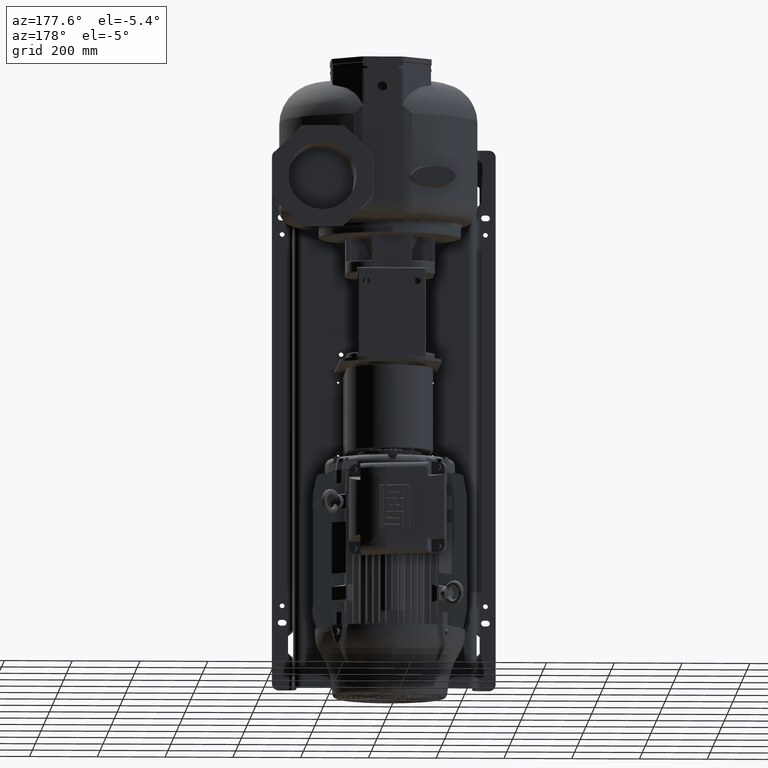
[diagram: clean part render]
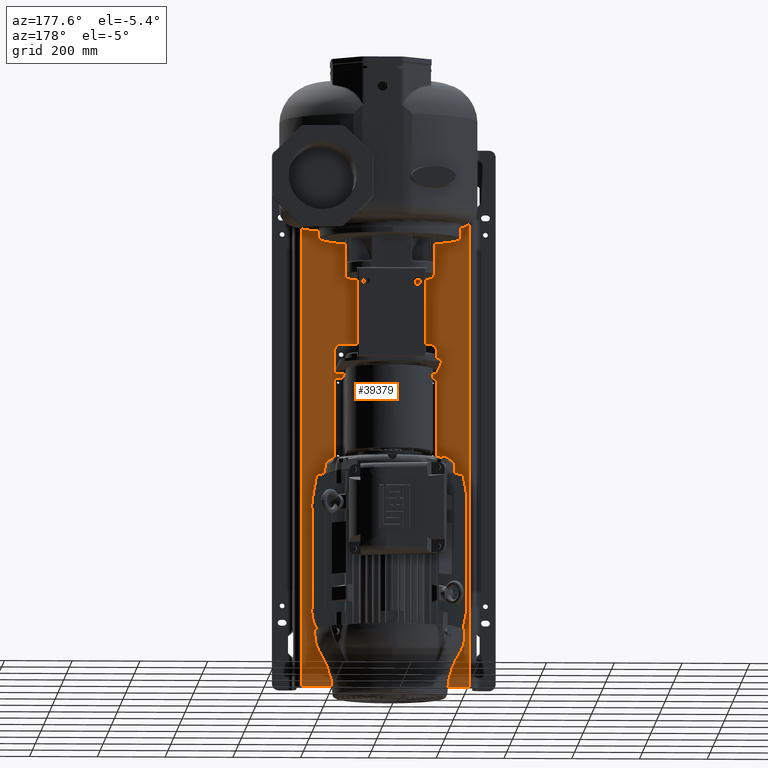
[diagram: same view with one face highlighted and labeled with its STEP entity id]
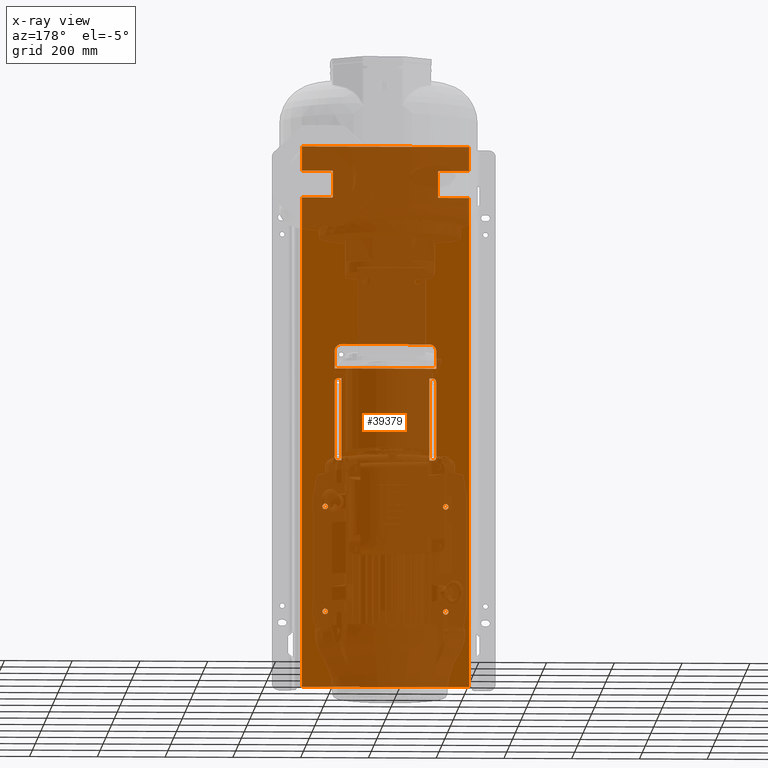
[diagram: x-ray of the same camera — body ghosted, the highlighted face saturated]
A machine part, auxiliary view. The second image highlights one B-rep face of the part: STEP entity #39379.
The next image is the same camera in x-ray: the body ghosted, the highlighted face saturated — about 74% of this face is hidden behind the body in this view.
In plain terms, the highlighted planar face has unit normal (0, 1, 0).
Its self-contained STEP definition (entity closure, byte-faithful):
#3319=DIRECTION('',(0.E0,0.E0,1.E0));
#3320=VECTOR('',#3319,2.43E2);
#3321=CARTESIAN_POINT('',(-1.296E2,0.E0,-8.28E2));
#3322=LINE('',#3321,#3320);
#3328=DIRECTION('',(0.E0,0.E0,1.E0));
#3329=VECTOR('',#3328,7.168629150102E1);
#3330=CARTESIAN_POINT('',(2.47E2,0.E0,2.931370849898E1));
#3331=LINE('',#3330,#3329);
#3332=DIRECTION('',(0.E0,0.E0,1.E0));
#3333=VECTOR('',#3332,1.449E3);
#3334=CARTESIAN_POINT('',(2.47E2,0.E0,-1.499E3));
#3335=LINE('',#3334,#3333);
#3336=CARTESIAN_POINT('',(1.78E2,0.E0,-9.65E2));
#3337=DIRECTION('',(0.E0,1.E0,0.E0));
#3338=DIRECTION('',(-1.E0,0.E0,0.E0));
#3339=AXIS2_PLACEMENT_3D('',#3336,#3337,#3338);
#3341=CARTESIAN_POINT('',(1.78E2,0.E0,-9.65E2));
#3342=DIRECTION('',(0.E0,1.E0,0.E0));
#3343=DIRECTION('',(1.E0,0.E0,0.E0));
#3344=AXIS2_PLACEMENT_3D('',#3341,#3342,#3343);
#3346=CARTESIAN_POINT('',(-1.78E2,0.E0,-9.65E2));
#3347=DIRECTION('',(0.E0,1.E0,0.E0));
#3348=DIRECTION('',(-1.E0,0.E0,0.E0));
#3349=AXIS2_PLACEMENT_3D('',#3346,#3347,#3348);
#3351=CARTESIAN_POINT('',(-1.78E2,0.E0,-9.65E2));
#3352=DIRECTION('',(0.E0,1.E0,0.E0));
#3353=DIRECTION('',(1.E0,0.E0,0.E0));
#3354=AXIS2_PLACEMENT_3D('',#3351,#3352,#3353);
#3356=CARTESIAN_POINT('',(1.78E2,0.E0,-1.276E3));
#3357=DIRECTION('',(0.E0,1.E0,0.E0));
#3358=DIRECTION('',(-1.E0,0.E0,0.E0));
#3359=AXIS2_PLACEMENT_3D('',#3356,#3357,#3358);
#3361=CARTESIAN_POINT('',(1.78E2,0.E0,-1.276E3));
#3362=DIRECTION('',(0.E0,1.E0,0.E0));
#3363=DIRECTION('',(1.E0,0.E0,0.E0));
#3364=AXIS2_PLACEMENT_3D('',#3361,#3362,#3363);
#3366=CARTESIAN_POINT('',(-1.78E2,0.E0,-1.276E3));
#3367=DIRECTION('',(0.E0,1.E0,0.E0));
#3368=DIRECTION('',(-1.E0,0.E0,0.E0));
#3369=AXIS2_PLACEMENT_3D('',#3366,#3367,#3368);
#3371=CARTESIAN_POINT('',(-1.78E2,0.E0,-1.276E3));
#3372=DIRECTION('',(0.E0,1.E0,0.E0));
#3373=DIRECTION('',(1.E0,0.E0,0.E0));
#3374=AXIS2_PLACEMENT_3D('',#3371,#3372,#3373);
#3376=DIRECTION('',(-1.E0,0.E0,0.E0));
#3377=VECTOR('',#3376,8.4E1);
#3378=CARTESIAN_POINT('',(2.43E2,0.E0,3.E1));
#3379=LINE('',#3378,#3377);
#3415=CARTESIAN_POINT('',(1.59E2,0.E0,2.6E1));
#3416=DIRECTION('',(0.E0,-1.E0,0.E0));
#3417=DIRECTION('',(0.E0,0.E0,1.E0));
#3418=AXIS2_PLACEMENT_3D('',#3415,#3416,#3417);
#3425=DIRECTION('',(0.E0,0.E0,-1.E0));
#3426=VECTOR('',#3425,7.2E1);
#3427=CARTESIAN_POINT('',(1.55E2,0.E0,2.6E1));
#3428=LINE('',#3427,#3426);
#3446=CARTESIAN_POINT('',(1.59E2,-6.821210263297E-13,-4.6E1));
#3447=DIRECTION('',(0.E0,1.E0,0.E0));
#3448=DIRECTION('',(0.E0,0.E0,-1.E0));
#3449=AXIS2_PLACEMENT_3D('',#3446,#3447,#3448);
#3451=DIRECTION('',(-1.E0,0.E0,0.E0));
#3452=VECTOR('',#3451,8.8E1);
#3453=CARTESIAN_POINT('',(2.47E2,0.E0,-5.E1));
#3454=LINE('',#3453,#3452);
#3491=DIRECTION('',(-1.E0,0.E0,0.E0));
#3492=VECTOR('',#3491,8.8E1);
#3493=CARTESIAN_POINT('',(-1.59E2,0.E0,-5.E1));
#3494=LINE('',#3493,#3492);
#3557=DIRECTION('',(-1.E0,0.E0,0.E0));
#3558=VECTOR('',#3557,4.94E2);
#3559=CARTESIAN_POINT('',(2.47E2,0.E0,-1.499E3));
#3560=LINE('',#3559,#3558);
#3583=DIRECTION('',(0.E0,0.E0,1.E0));
#3584=VECTOR('',#3583,7.168629150102E1);
#3585=CARTESIAN_POINT('',(-2.47E2,0.E0,2.931370849898E1));
#3586=LINE('',#3585,#3584);
#3587=DIRECTION('',(0.E0,0.E0,1.E0));
#3588=VECTOR('',#3587,1.449E3);
#3589=CARTESIAN_POINT('',(-2.47E2,0.E0,-1.499E3));
#3590=LINE('',#3589,#3588);
#4370=CARTESIAN_POINT('',(2.43E2,0.E0,1.8E1));
#4371=DIRECTION('',(0.E0,-1.E0,0.E0));
#4372=DIRECTION('',(3.333333333333E-1,0.E0,9.428090415821E-1));
#4373=AXIS2_PLACEMENT_3D('',#4370,#4371,#4372);
#4989=CARTESIAN_POINT('',(-1.59E2,0.E0,-4.6E1));
#4990=DIRECTION('',(0.E0,-1.E0,0.E0));
#4991=DIRECTION('',(0.E0,0.E0,-1.E0));
#4992=AXIS2_PLACEMENT_3D('',#4989,#4990,#4991);
#4999=DIRECTION('',(0.E0,0.E0,1.E0));
#5000=VECTOR('',#4999,7.2E1);
#5001=CARTESIAN_POINT('',(-1.55E2,0.E0,-4.6E1));
#5002=LINE('',#5001,#5000);
#5053=CARTESIAN_POINT('',(-1.59E2,-2.273736754432E-13,2.6E1));
#5054=DIRECTION('',(0.E0,1.E0,0.E0));
#5055=DIRECTION('',(0.E0,0.E0,1.E0));
#5056=AXIS2_PLACEMENT_3D('',#5053,#5054,#5055);
#5058=DIRECTION('',(-1.E0,0.E0,0.E0));
#5059=VECTOR('',#5058,8.4E1);
#5060=CARTESIAN_POINT('',(-1.59E2,0.E0,3.E1));
#5061=LINE('',#5060,#5059);
#5096=CARTESIAN_POINT('',(-2.43E2,0.E0,1.8E1));
#5097=DIRECTION('',(0.E0,-1.E0,0.E0));
#5098=DIRECTION('',(0.E0,0.E0,1.E0));
#5099=AXIS2_PLACEMENT_3D('',#5096,#5097,#5098);
#7192=DIRECTION('',(-1.E0,0.E0,0.E0));
#7193=VECTOR('',#7192,4.94E2);
#7194=CARTESIAN_POINT('',(2.47E2,0.E0,1.01E2));
#7195=LINE('',#7194,#7193);
#8620=CARTESIAN_POINT('',(-1.4E2,-4.547473508865E-13,-5.95E2));
#8621=DIRECTION('',(0.E0,-1.E0,0.E0));
#8622=DIRECTION('',(0.E0,0.E0,1.E0));
#8623=AXIS2_PLACEMENT_3D('',#8620,#8621,#8622);
#8625=DIRECTION('',(0.E0,0.E0,1.E0));
#8626=VECTOR('',#8625,2.23E2);
#8627=CARTESIAN_POINT('',(-1.5E2,0.E0,-8.18E2));
#8628=LINE('',#8627,#8626);
#8637=CARTESIAN_POINT('',(-1.4E2,-4.547473508865E-13,-8.18E2));
#8638=DIRECTION('',(0.E0,-1.E0,0.E0));
#8639=DIRECTION('',(-1.E0,0.E0,0.E0));
#8640=AXIS2_PLACEMENT_3D('',#8637,#8638,#8639);
#8642=DIRECTION('',(1.E0,0.E0,0.E0));
#8643=VECTOR('',#8642,1.04E1);
#8644=CARTESIAN_POINT('',(-1.4E2,0.E0,-8.28E2));
#8645=LINE('',#8644,#8643);
#8667=DIRECTION('',(1.E0,0.E0,0.E0));
#8668=VECTOR('',#8667,1.04E1);
#8669=CARTESIAN_POINT('',(-1.4E2,0.E0,-5.85E2));
#8670=LINE('',#8669,#8668);
#8837=CARTESIAN_POINT('',(1.4E2,1.250555214938E-12,-5.95E2));
#8838=DIRECTION('',(0.E0,-1.E0,0.E0));
#8839=DIRECTION('',(1.E0,0.E0,1.443822839065E-12));
#8840=AXIS2_PLACEMENT_3D('',#8837,#8838,#8839);
#8842=DIRECTION('',(1.E0,1.186017096499E-14,0.E0));
#8843=VECTOR('',#8842,1.04E1);
#8844=CARTESIAN_POINT('',(1.296E2,-1.233457780359E-13,-5.85E2));
#8845=LINE('',#8844,#8843);
#8872=DIRECTION('',(0.E0,0.E0,1.E0));
#8873=VECTOR('',#8872,2.43E2);
#8874=CARTESIAN_POINT('',(1.296E2,-1.197930643571E-13,-8.28E2));
#8875=LINE('',#8874,#8873);
#8889=DIRECTION('',(1.E0,1.151856388049E-14,0.E0));
#8890=VECTOR('',#8889,1.04E1);
#8891=CARTESIAN_POINT('',(1.296E2,-1.197930643571E-13,-8.28E2));
#8892=LINE('',#8891,#8890);
#8897=CARTESIAN_POINT('',(1.4E2,-3.410605131648E-13,-8.18E2));
#8898=DIRECTION('',(0.E0,-1.E0,0.E0));
#8899=DIRECTION('',(0.E0,0.E0,-1.E0));
#8900=AXIS2_PLACEMENT_3D('',#8897,#8898,#8899);
#8902=DIRECTION('',(0.E0,0.E0,1.E0));
#8903=VECTOR('',#8902,2.23E2);
#8904=CARTESIAN_POINT('',(1.5E2,-3.789561257387E-14,-8.18E2));
#8905=LINE('',#8904,#8903);
#11347=CARTESIAN_POINT('',(-1.3E2,0.E0,-5.04E2));
#11348=DIRECTION('',(0.E0,-1.E0,0.E0));
#11349=DIRECTION('',(0.E0,0.E0,1.E0));
#11350=AXIS2_PLACEMENT_3D('',#11347,#11348,#11349);
#11352=DIRECTION('',(0.E0,0.E0,1.E0));
#11353=VECTOR('',#11352,5.2E1);
#11354=CARTESIAN_POINT('',(-1.5E2,2.819966482548E-14,-5.56E2));
#11355=LINE('',#11354,#11353);
#11368=DIRECTION('',(1.E0,0.E0,0.E0));
#11369=VECTOR('',#11368,3.E2);
#11370=CARTESIAN_POINT('',(-1.5E2,2.819966482548E-14,-5.56E2));
#11371=LINE('',#11370,#11369);
#11390=DIRECTION('',(0.E0,0.E0,-1.E0));
#11391=VECTOR('',#11390,5.2E1);
#11392=CARTESIAN_POINT('',(1.5E2,0.E0,-5.04E2));
#11393=LINE('',#11392,#11391);
#11398=CARTESIAN_POINT('',(1.3E2,0.E0,-5.04E2));
#11399=DIRECTION('',(0.E0,-1.E0,0.E0));
#11400=DIRECTION('',(1.E0,0.E0,0.E0));
#11401=AXIS2_PLACEMENT_3D('',#11398,#11399,#11400);
#11403=DIRECTION('',(1.E0,0.E0,0.E0));
#11404=VECTOR('',#11403,2.6E2);
#11405=CARTESIAN_POINT('',(-1.3E2,0.E0,-4.84E2));
#11406=LINE('',#11405,#11404);
#34976=CARTESIAN_POINT('',(2.47E2,0.E0,-1.499E3));
#34977=VERTEX_POINT('',#34976);
#34978=CARTESIAN_POINT('',(-2.47E2,0.E0,-1.499E3));
#34979=VERTEX_POINT('',#34978);
#34992=CARTESIAN_POINT('',(2.47E2,0.E0,1.01E2));
#34993=VERTEX_POINT('',#34992);
#34994=CARTESIAN_POINT('',(-2.47E2,0.E0,1.01E2));
#34995=VERTEX_POINT('',#34994);
#35274=CARTESIAN_POINT('',(1.6985E2,0.E0,-9.65E2));
#35275=CARTESIAN_POINT('',(1.8615E2,0.E0,-9.65E2));
#35276=VERTEX_POINT('',#35274);
#35277=VERTEX_POINT('',#35275);
#35278=CARTESIAN_POINT('',(-1.8615E2,0.E0,-9.65E2));
#35279=CARTESIAN_POINT('',(-1.6985E2,0.E0,-9.65E2));
#35280=VERTEX_POINT('',#35278);
#35281=VERTEX_POINT('',#35279);
#35282=CARTESIAN_POINT('',(1.6985E2,0.E0,-1.276E3));
#35283=CARTESIAN_POINT('',(1.8615E2,0.E0,-1.276E3));
#35284=VERTEX_POINT('',#35282);
#35285=VERTEX_POINT('',#35283);
#35286=CARTESIAN_POINT('',(-1.8615E2,0.E0,-1.276E3));
#35287=CARTESIAN_POINT('',(-1.6985E2,0.E0,-1.276E3));
#35288=VERTEX_POINT('',#35286);
#35289=VERTEX_POINT('',#35287);
#35338=CARTESIAN_POINT('',(2.47E2,0.E0,-5.E1));
#35339=CARTESIAN_POINT('',(2.47E2,0.E0,2.931370849898E1));
#35340=VERTEX_POINT('',#35338);
#35341=VERTEX_POINT('',#35339);
#35342=CARTESIAN_POINT('',(-2.47E2,0.E0,-5.E1));
#35343=CARTESIAN_POINT('',(-2.47E2,0.E0,2.931370849898E1));
#35344=VERTEX_POINT('',#35342);
#35345=VERTEX_POINT('',#35343);
#35362=CARTESIAN_POINT('',(2.43E2,0.E0,3.E1));
#35363=CARTESIAN_POINT('',(1.59E2,0.E0,3.E1));
#35364=VERTEX_POINT('',#35362);
#35365=VERTEX_POINT('',#35363);
#35366=CARTESIAN_POINT('',(-1.59E2,0.E0,3.E1));
#35367=CARTESIAN_POINT('',(-2.43E2,0.E0,3.E1));
#35368=VERTEX_POINT('',#35366);
#35369=VERTEX_POINT('',#35367);
#35370=CARTESIAN_POINT('',(1.59E2,0.E0,-5.E1));
#35371=VERTEX_POINT('',#35370);
#35372=CARTESIAN_POINT('',(-1.59E2,0.E0,-5.E1));
#35373=VERTEX_POINT('',#35372);
#35374=CARTESIAN_POINT('',(1.55E2,0.E0,2.6E1));
#35375=CARTESIAN_POINT('',(1.55E2,0.E0,-4.6E1));
#35376=VERTEX_POINT('',#35374);
#35377=VERTEX_POINT('',#35375);
#35378=CARTESIAN_POINT('',(-1.55E2,0.E0,-4.6E1));
#35379=CARTESIAN_POINT('',(-1.55E2,0.E0,2.6E1));
#35380=VERTEX_POINT('',#35378);
#35381=VERTEX_POINT('',#35379);
#35422=CARTESIAN_POINT('',(-1.5E2,2.819966482548E-14,-5.56E2));
#35423=CARTESIAN_POINT('',(1.5E2,2.819966482548E-14,-5.56E2));
#35424=VERTEX_POINT('',#35422);
#35425=VERTEX_POINT('',#35423);
#35426=CARTESIAN_POINT('',(-1.5E2,0.E0,-5.04E2));
#35427=VERTEX_POINT('',#35426);
#35428=CARTESIAN_POINT('',(-1.3E2,0.E0,-4.84E2));
#35429=CARTESIAN_POINT('',(1.3E2,0.E0,-4.84E2));
#35430=VERTEX_POINT('',#35428);
#35431=VERTEX_POINT('',#35429);
#35432=CARTESIAN_POINT('',(1.5E2,0.E0,-5.04E2));
#35433=VERTEX_POINT('',#35432);
#35482=CARTESIAN_POINT('',(-1.296E2,0.E0,-8.28E2));
#35483=CARTESIAN_POINT('',(-1.296E2,0.E0,-5.85E2));
#35484=VERTEX_POINT('',#35482);
#35485=VERTEX_POINT('',#35483);
#35486=CARTESIAN_POINT('',(1.296E2,-1.197930643571E-13,-8.28E2));
#35487=CARTESIAN_POINT('',(1.296E2,-1.233457780359E-13,-5.85E2));
#35488=VERTEX_POINT('',#35486);
#35489=VERTEX_POINT('',#35487);
#35490=CARTESIAN_POINT('',(-1.4E2,0.E0,-5.85E2));
#35491=VERTEX_POINT('',#35490);
#35492=CARTESIAN_POINT('',(-1.5E2,0.E0,-8.18E2));
#35493=CARTESIAN_POINT('',(-1.5E2,0.E0,-5.95E2));
#35494=VERTEX_POINT('',#35492);
#35495=VERTEX_POINT('',#35493);
#35496=CARTESIAN_POINT('',(1.5E2,-3.789561257387E-14,-8.18E2));
#35497=CARTESIAN_POINT('',(1.5E2,-3.789561257387E-14,-5.95E2));
#35498=VERTEX_POINT('',#35496);
#35499=VERTEX_POINT('',#35497);
#35500=CARTESIAN_POINT('',(1.4E2,0.E0,-5.85E2));
#35501=VERTEX_POINT('',#35500);
#35502=CARTESIAN_POINT('',(-1.4E2,0.E0,-8.28E2));
#35503=VERTEX_POINT('',#35502);
#35504=CARTESIAN_POINT('',(1.4E2,0.E0,-8.28E2));
#35505=VERTEX_POINT('',#35504);
#39271=CARTESIAN_POINT('',(2.47E2,0.E0,-1.499E3));
#39272=DIRECTION('',(0.E0,1.E0,0.E0));
#39273=DIRECTION('',(-1.E0,0.E0,0.E0));
#39274=AXIS2_PLACEMENT_3D('',#39271,#39272,#39273);
#39275=PLANE('',#39274);
#39277=ORIENTED_EDGE('',*,*,#39276,.F.);
#39279=ORIENTED_EDGE('',*,*,#39278,.F.);
#39281=ORIENTED_EDGE('',*,*,#39280,.T.);
#39283=ORIENTED_EDGE('',*,*,#39282,.T.);
#39285=ORIENTED_EDGE('',*,*,#39284,.F.);
#39287=ORIENTED_EDGE('',*,*,#39286,.F.);
#39289=ORIENTED_EDGE('',*,*,#39288,.F.);
#39291=ORIENTED_EDGE('',*,*,#39290,.T.);
#39293=ORIENTED_EDGE('',*,*,#39292,.F.);
#39295=ORIENTED_EDGE('',*,*,#39294,.F.);
#39297=ORIENTED_EDGE('',*,*,#39296,.T.);
#39299=ORIENTED_EDGE('',*,*,#39298,.F.);
#39301=ORIENTED_EDGE('',*,*,#39300,.F.);
#39303=ORIENTED_EDGE('',*,*,#39302,.T.);
#39305=ORIENTED_EDGE('',*,*,#39304,.T.);
#39307=ORIENTED_EDGE('',*,*,#39306,.T.);
#39309=ORIENTED_EDGE('',*,*,#39308,.F.);
#39311=ORIENTED_EDGE('',*,*,#39310,.F.);
#39312=EDGE_LOOP('',(#39277,#39279,#39281,#39283,#39285,#39287,#39289,#39291,
#39293,#39295,#39297,#39299,#39301,#39303,#39305,#39307,#39309,#39311));
#39313=FACE_OUTER_BOUND('',#39312,.F.);
#39315=ORIENTED_EDGE('',*,*,#39314,.T.);
#39317=ORIENTED_EDGE('',*,*,#39316,.T.);
#39318=EDGE_LOOP('',(#39315,#39317));
#39319=FACE_BOUND('',#39318,.F.);
#39321=ORIENTED_EDGE('',*,*,#39320,.T.);
#39323=ORIENTED_EDGE('',*,*,#39322,.T.);
#39324=EDGE_LOOP('',(#39321,#39323));
#39325=FACE_BOUND('',#39324,.F.);
#39327=ORIENTED_EDGE('',*,*,#39326,.T.);
#39329=ORIENTED_EDGE('',*,*,#39328,.T.);
#39330=EDGE_LOOP('',(#39327,#39329));
#39331=FACE_BOUND('',#39330,.F.);
#39333=ORIENTED_EDGE('',*,*,#39332,.T.);
#39335=ORIENTED_EDGE('',*,*,#39334,.T.);
#39336=EDGE_LOOP('',(#39333,#39335));
#39337=FACE_BOUND('',#39336,.F.);
#39339=ORIENTED_EDGE('',*,*,#39338,.F.);
#39341=ORIENTED_EDGE('',*,*,#39340,.T.);
#39343=ORIENTED_EDGE('',*,*,#39342,.F.);
#39345=ORIENTED_EDGE('',*,*,#39344,.T.);
#39347=ORIENTED_EDGE('',*,*,#39346,.F.);
#39349=ORIENTED_EDGE('',*,*,#39348,.T.);
#39350=EDGE_LOOP('',(#39339,#39341,#39343,#39345,#39347,#39349));
#39351=FACE_BOUND('',#39350,.F.);
#39352=ORIENTED_EDGE('',*,*,#39262,.F.);
#39354=ORIENTED_EDGE('',*,*,#39353,.F.);
#39356=ORIENTED_EDGE('',*,*,#39355,.F.);
#39358=ORIENTED_EDGE('',*,*,#39357,.T.);
#39360=ORIENTED_EDGE('',*,*,#39359,.F.);
#39362=ORIENTED_EDGE('',*,*,#39361,.T.);
#39363=EDGE_LOOP('',(#39352,#39354,#39356,#39358,#39360,#39362));
#39364=FACE_BOUND('',#39363,.F.);
#39366=ORIENTED_EDGE('',*,*,#39365,.T.);
#39368=ORIENTED_EDGE('',*,*,#39367,.T.);
#39370=ORIENTED_EDGE('',*,*,#39369,.F.);
#39372=ORIENTED_EDGE('',*,*,#39371,.F.);
#39374=ORIENTED_EDGE('',*,*,#39373,.F.);
#39376=ORIENTED_EDGE('',*,*,#39375,.F.);
#39377=EDGE_LOOP('',(#39366,#39368,#39370,#39372,#39374,#39376));
#39378=FACE_BOUND('',#39377,.F.);
#39379=ADVANCED_FACE('',(#39313,#39319,#39325,#39331,#39337,#39351,#39364,
#39378),#39275,.T.);
#3340=CIRCLE('',#3339,8.15E0);
#3345=CIRCLE('',#3344,8.15E0);
#3350=CIRCLE('',#3349,8.15E0);
#3355=CIRCLE('',#3354,8.15E0);
#3360=CIRCLE('',#3359,8.15E0);
#3365=CIRCLE('',#3364,8.15E0);
#3370=CIRCLE('',#3369,8.15E0);
#3375=CIRCLE('',#3374,8.15E0);
#3419=CIRCLE('',#3418,4.E0);
#3450=CIRCLE('',#3449,4.E0);
#4374=CIRCLE('',#4373,1.2E1);
#4993=CIRCLE('',#4992,4.E0);
#5057=CIRCLE('',#5056,4.E0);
#5100=CIRCLE('',#5099,1.2E1);
#8624=CIRCLE('',#8623,1.E1);
#8641=CIRCLE('',#8640,1.E1);
#8841=CIRCLE('',#8840,1.E1);
#8901=CIRCLE('',#8900,1.E1);
#11351=CIRCLE('',#11350,2.E1);
#11402=CIRCLE('',#11401,2.E1);
#39262=EDGE_CURVE('',#35484,#35485,#3322,.T.);
#39276=EDGE_CURVE('',#35364,#35365,#3379,.T.);
#39278=EDGE_CURVE('',#35341,#35364,#4374,.T.);
#39280=EDGE_CURVE('',#35341,#34993,#3331,.T.);
#39282=EDGE_CURVE('',#34993,#34995,#7195,.T.);
#39284=EDGE_CURVE('',#35345,#34995,#3586,.T.);
#39286=EDGE_CURVE('',#35369,#35345,#5100,.T.);
#39288=EDGE_CURVE('',#35368,#35369,#5061,.T.);
#39290=EDGE_CURVE('',#35368,#35381,#5057,.T.);
#39292=EDGE_CURVE('',#35380,#35381,#5002,.T.);
#39294=EDGE_CURVE('',#35373,#35380,#4993,.T.);
#39296=EDGE_CURVE('',#35373,#35344,#3494,.T.);
#39298=EDGE_CURVE('',#34979,#35344,#3590,.T.);
#39300=EDGE_CURVE('',#34977,#34979,#3560,.T.);
#39302=EDGE_CURVE('',#34977,#35340,#3335,.T.);
#39304=EDGE_CURVE('',#35340,#35371,#3454,.T.);
#39306=EDGE_CURVE('',#35371,#35377,#3450,.T.);
#39308=EDGE_CURVE('',#35376,#35377,#3428,.T.);
#39310=EDGE_CURVE('',#35365,#35376,#3419,.T.);
#39314=EDGE_CURVE('',#35276,#35277,#3340,.T.);
#39316=EDGE_CURVE('',#35277,#35276,#3345,.T.);
#39320=EDGE_CURVE('',#35280,#35281,#3350,.T.);
#39322=EDGE_CURVE('',#35281,#35280,#3355,.T.);
#39326=EDGE_CURVE('',#35284,#35285,#3360,.T.);
#39328=EDGE_CURVE('',#35285,#35284,#3365,.T.);
#39332=EDGE_CURVE('',#35288,#35289,#3370,.T.);
#39334=EDGE_CURVE('',#35289,#35288,#3375,.T.);
#39338=EDGE_CURVE('',#35424,#35425,#11371,.T.);
#39340=EDGE_CURVE('',#35424,#35427,#11355,.T.);
#39342=EDGE_CURVE('',#35430,#35427,#11351,.T.);
#39344=EDGE_CURVE('',#35430,#35431,#11406,.T.);
#39346=EDGE_CURVE('',#35433,#35431,#11402,.T.);
#39348=EDGE_CURVE('',#35433,#35425,#11393,.T.);
#39353=EDGE_CURVE('',#35503,#35484,#8645,.T.);
#39355=EDGE_CURVE('',#35494,#35503,#8641,.T.);
#39357=EDGE_CURVE('',#35494,#35495,#8628,.T.);
#39359=EDGE_CURVE('',#35491,#35495,#8624,.T.);
#39361=EDGE_CURVE('',#35491,#35485,#8670,.T.);
#39365=EDGE_CURVE('',#35488,#35489,#8875,.T.);
#39367=EDGE_CURVE('',#35489,#35501,#8845,.T.);
#39369=EDGE_CURVE('',#35499,#35501,#8841,.T.);
#39371=EDGE_CURVE('',#35498,#35499,#8905,.T.);
#39373=EDGE_CURVE('',#35505,#35498,#8901,.T.);
#39375=EDGE_CURVE('',#35488,#35505,#8892,.T.);